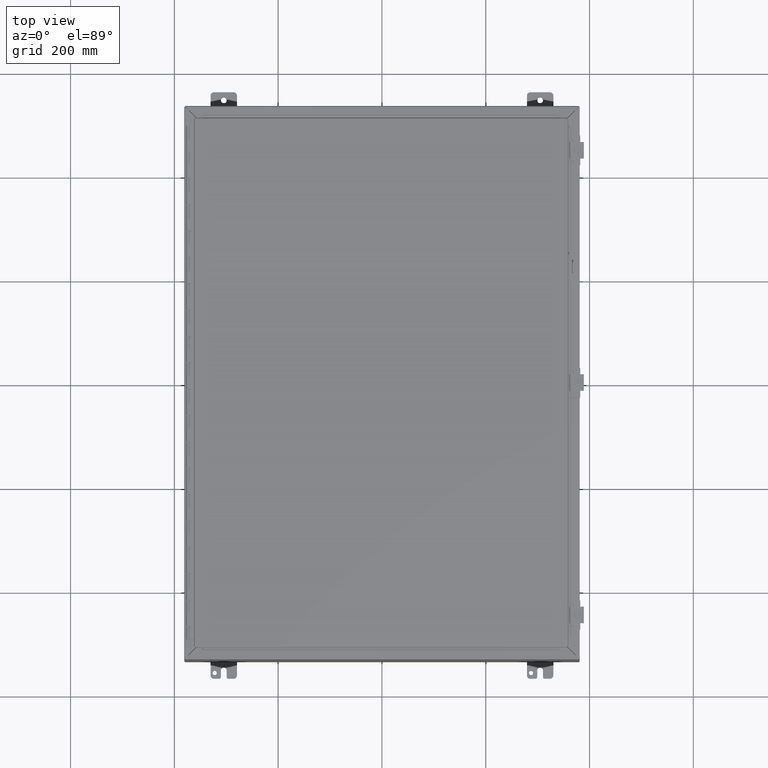
[diagram: clean part render]
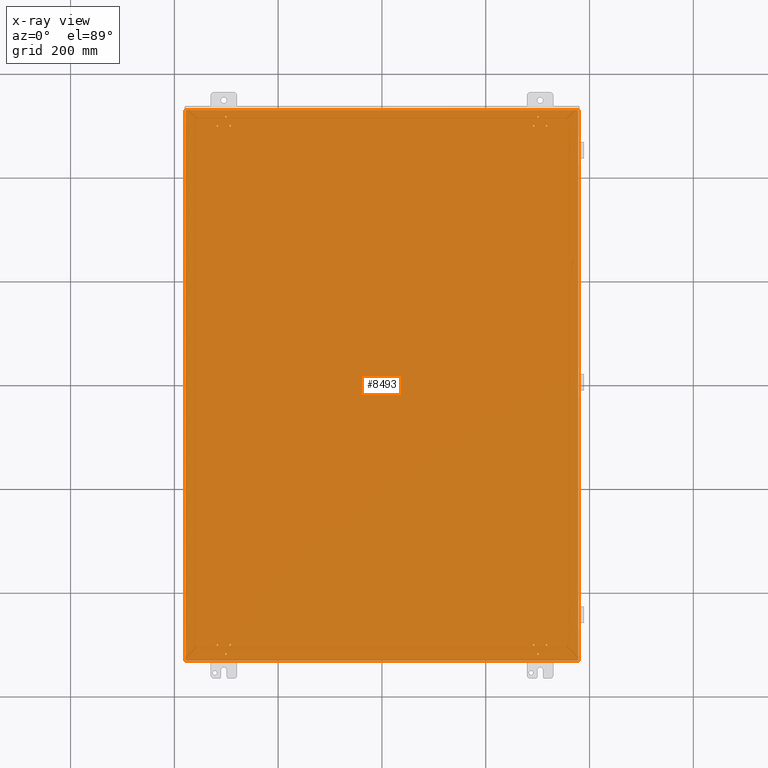
[diagram: x-ray — body ghosted, one internal face saturated and labeled with its STEP entity id]
A machine part, top view, then the same camera in x-ray: the body is ghosted and one INTERNAL B-rep face — a face not visible from any outside direction — is saturated and labeled: STEP entity #8493.
In plain terms, the highlighted planar face has unit normal (0, 0, 1).
Its self-contained STEP definition (entity closure, byte-faithful):
#1709=CARTESIAN_POINT('',(12.424375299999996,-19.689998991866471,0.074));
#1710=VERTEX_POINT('',#1709);
#1711=CARTESIAN_POINT('',(12.484375299999996,-19.689998991866471,0.074));
#1712=DIRECTION('',(0.0,0.0,-1.0));
#1713=DIRECTION('',(1.0,0.0,0.0));
#1714=AXIS2_PLACEMENT_3D('',#1711,#1712,#1713);
#1715=CIRCLE('',#1714,0.06);
#1716=EDGE_CURVE('',#1710,#1710,#1715,.T.);
#1783=CARTESIAN_POINT('',(11.455625299999998,-19.689998991866471,0.074));
#1784=VERTEX_POINT('',#1783);
#1785=CARTESIAN_POINT('',(11.515625299999998,-19.689998991866471,0.074));
#1786=DIRECTION('',(0.0,0.0,-1.0));
#1787=DIRECTION('',(1.0,0.0,0.0));
#1788=AXIS2_PLACEMENT_3D('',#1785,#1786,#1787);
#1789=CIRCLE('',#1788,0.06);
#1790=EDGE_CURVE('',#1784,#1784,#1789,.T.);
#1857=CARTESIAN_POINT('',(11.781250299997273,-20.375498991872277,0.074));
#1858=VERTEX_POINT('',#1857);
#1859=CARTESIAN_POINT('',(11.841250299997274,-20.375498991872277,0.074));
#1860=DIRECTION('',(0.0,0.0,-1.0));
#1861=DIRECTION('',(1.0,0.0,0.0));
#1862=AXIS2_PLACEMENT_3D('',#1859,#1860,#1861);
#1863=CIRCLE('',#1862,0.06);
#1864=EDGE_CURVE('',#1858,#1858,#1863,.T.);
#1931=CARTESIAN_POINT('',(-11.57562529999997,-19.689998991866478,0.074));
#1932=VERTEX_POINT('',#1931);
#1933=CARTESIAN_POINT('',(-11.51562529999997,-19.689998991866478,0.074));
#1934=DIRECTION('',(0.0,0.0,-1.0));
#1935=DIRECTION('',(1.0,0.0,0.0));
#1936=AXIS2_PLACEMENT_3D('',#1933,#1934,#1935);
#1937=CIRCLE('',#1936,0.06);
#1938=EDGE_CURVE('',#1932,#1932,#1937,.T.);
#2005=CARTESIAN_POINT('',(-11.901250299997244,-20.375498991872284,0.074));
#2006=VERTEX_POINT('',#2005);
#2007=CARTESIAN_POINT('',(-11.841250299997244,-20.375498991872284,0.074));
#2008=DIRECTION('',(0.0,0.0,-1.0));
#2009=DIRECTION('',(1.0,0.0,0.0));
#2010=AXIS2_PLACEMENT_3D('',#2007,#2008,#2009);
#2011=CIRCLE('',#2010,0.06);
#2012=EDGE_CURVE('',#2006,#2006,#2011,.T.);
#2079=CARTESIAN_POINT('',(-12.544375299999967,-19.689998991866478,0.074));
#2080=VERTEX_POINT('',#2079);
#2081=CARTESIAN_POINT('',(-12.484375299999966,-19.689998991866478,0.074));
#2082=DIRECTION('',(0.0,0.0,-1.0));
#2083=DIRECTION('',(1.0,0.0,0.0));
#2084=AXIS2_PLACEMENT_3D('',#2081,#2082,#2083);
#2085=CIRCLE('',#2084,0.06);
#2086=EDGE_CURVE('',#2080,#2080,#2085,.T.);
#2153=CARTESIAN_POINT('',(-11.901250299997248,20.375498991872284,0.074));
#2154=VERTEX_POINT('',#2153);
#2155=CARTESIAN_POINT('',(-11.841250299997247,20.375498991872284,0.074));
#2156=DIRECTION('',(0.0,0.0,-1.0));
#2157=DIRECTION('',(1.0,0.0,0.0));
#2158=AXIS2_PLACEMENT_3D('',#2155,#2156,#2157);
#2159=CIRCLE('',#2158,0.06);
#2160=EDGE_CURVE('',#2154,#2154,#2159,.T.);
#2227=CARTESIAN_POINT('',(-12.54437529999997,19.689998991866478,0.074));
#2228=VERTEX_POINT('',#2227);
#2229=CARTESIAN_POINT('',(-12.48437529999997,19.689998991866478,0.074));
#2230=DIRECTION('',(0.0,0.0,-1.0));
#2231=DIRECTION('',(1.0,0.0,0.0));
#2232=AXIS2_PLACEMENT_3D('',#2229,#2230,#2231);
#2233=CIRCLE('',#2232,0.06);
#2234=EDGE_CURVE('',#2228,#2228,#2233,.T.);
#2301=CARTESIAN_POINT('',(-11.575625299999972,19.689998991866478,0.074));
#2302=VERTEX_POINT('',#2301);
#2303=CARTESIAN_POINT('',(-11.515625299999973,19.689998991866478,0.074));
#2304=DIRECTION('',(0.0,0.0,-1.0));
#2305=DIRECTION('',(1.0,0.0,0.0));
#2306=AXIS2_PLACEMENT_3D('',#2303,#2304,#2305);
#2307=CIRCLE('',#2306,0.06);
#2308=EDGE_CURVE('',#2302,#2302,#2307,.T.);
#2375=CARTESIAN_POINT('',(11.455625299999994,19.689998991866471,0.074));
#2376=VERTEX_POINT('',#2375);
#2377=CARTESIAN_POINT('',(11.515625299999995,19.689998991866471,0.074));
#2378=DIRECTION('',(0.0,0.0,-1.0));
#2379=DIRECTION('',(1.0,0.0,0.0));
#2380=AXIS2_PLACEMENT_3D('',#2377,#2378,#2379);
#2381=CIRCLE('',#2380,0.06);
#2382=EDGE_CURVE('',#2376,#2376,#2381,.T.);
#2449=CARTESIAN_POINT('',(11.78125029999727,20.375498991872277,0.074));
#2450=VERTEX_POINT('',#2449);
#2451=CARTESIAN_POINT('',(11.84125029999727,20.375498991872277,0.074));
#2452=DIRECTION('',(0.0,0.0,-1.0));
#2453=DIRECTION('',(1.0,0.0,0.0));
#2454=AXIS2_PLACEMENT_3D('',#2451,#2452,#2453);
#2455=CIRCLE('',#2454,0.06);
#2456=EDGE_CURVE('',#2450,#2450,#2455,.T.);
#2523=CARTESIAN_POINT('',(12.424375299999994,19.689998991866471,0.074));
#2524=VERTEX_POINT('',#2523);
#2525=CARTESIAN_POINT('',(12.484375299999993,19.689998991866471,0.074));
#2526=DIRECTION('',(0.0,0.0,-1.0));
#2527=DIRECTION('',(1.0,0.0,0.0));
#2528=AXIS2_PLACEMENT_3D('',#2525,#2526,#2527);
#2529=CIRCLE('',#2528,0.06);
#2530=EDGE_CURVE('',#2524,#2524,#2529,.T.);
#7057=CARTESIAN_POINT('',(14.894750000000004,20.882766839324358,0.074));
#7058=VERTEX_POINT('',#7057);
#7068=CARTESIAN_POINT('',(14.894750000000004,-20.882766839324372,0.074));
#7069=VERTEX_POINT('',#7068);
#7070=CARTESIAN_POINT('',(14.894750000000004,-20.882766839324368,0.074));
#7071=DIRECTION('',(0.0,1.0,0.0));
#7072=VECTOR('',#7071,41.765533678648723);
#7073=LINE('',#7070,#7072);
#7074=EDGE_CURVE('',#7069,#7058,#7073,.T.);
#7386=CARTESIAN_POINT('',(-14.894749999999995,-20.882766839324358,0.074));
#7387=VERTEX_POINT('',#7386);
#7397=CARTESIAN_POINT('',(-14.894750000000005,20.882766839324379,0.074));
#7398=VERTEX_POINT('',#7397);
#7399=CARTESIAN_POINT('',(-14.894750000000007,20.882766839324375,0.074));
#7400=DIRECTION('',(0.0,-1.0,0.0));
#7401=VECTOR('',#7400,41.765533678648737);
#7402=LINE('',#7399,#7401);
#7403=EDGE_CURVE('',#7398,#7387,#7402,.T.);
#7667=CARTESIAN_POINT('',(14.882766839324374,-20.894750000000005,0.074));
#7668=VERTEX_POINT('',#7667);
#7678=CARTESIAN_POINT('',(-14.882766839324349,-20.894750000000005,0.074));
#7679=VERTEX_POINT('',#7678);
#7680=CARTESIAN_POINT('',(-14.882766839324347,-20.894750000000005,0.074));
#7681=DIRECTION('',(1.0,0.0,0.0));
#7682=VECTOR('',#7681,29.765533678648723);
#7683=LINE('',#7680,#7682);
#7684=EDGE_CURVE('',#7679,#7668,#7683,.T.);
#8044=CARTESIAN_POINT('',(-14.882766839324379,20.894750000000005,0.074));
#8045=VERTEX_POINT('',#8044);
#8055=CARTESIAN_POINT('',(14.882766839324356,20.894750000000005,0.074));
#8056=VERTEX_POINT('',#8055);
#8057=CARTESIAN_POINT('',(14.88276683932436,20.894750000000005,0.074));
#8058=DIRECTION('',(-1.0,0.0,0.0));
#8059=VECTOR('',#8058,29.765533678648737);
#8060=LINE('',#8057,#8059);
#8061=EDGE_CURVE('',#8056,#8045,#8060,.T.);
#8330=CARTESIAN_POINT('',(-14.937891921115432,20.937891921115433,0.074));
#8331=DIRECTION('',(0.0,0.0,-1.0));
#8332=DIRECTION('',(1.0,0.0,0.0));
#8333=AXIS2_PLACEMENT_3D('',#8330,#8331,#8332);
#8334=CIRCLE('',#8333,0.07);
#8335=EDGE_CURVE('',#8045,#7398,#8334,.T.);
#8417=CARTESIAN_POINT('',(14.937891921115417,20.937891921115423,0.074));
#8418=DIRECTION('',(0.0,0.0,-1.0));
#8419=DIRECTION('',(1.0,0.0,0.0));
#8420=AXIS2_PLACEMENT_3D('',#8417,#8418,#8419);
#8421=CIRCLE('',#8420,0.07);
#8422=EDGE_CURVE('',#7058,#8056,#8421,.T.);
#8430=CARTESIAN_POINT('',(0.0,2.098059E-015,0.074));
#8431=DIRECTION('',(0.0,0.0,1.0));
#8432=DIRECTION('',(1.0,0.0,0.0));
#8433=AXIS2_PLACEMENT_3D('',#8430,#8431,#8432);
#8434=PLANE('',#8433);
#8435=ORIENTED_EDGE('',*,*,#8061,.T.);
#8436=ORIENTED_EDGE('',*,*,#8335,.T.);
#8437=ORIENTED_EDGE('',*,*,#7403,.T.);
#8438=CARTESIAN_POINT('',(-14.937891921115408,-20.937891921115423,0.074));
#8439=DIRECTION('',(0.0,0.0,-1.0));
#8440=DIRECTION('',(1.0,0.0,0.0));
#8441=AXIS2_PLACEMENT_3D('',#8438,#8439,#8440);
#8442=CIRCLE('',#8441,0.07);
#8443=EDGE_CURVE('',#7387,#7679,#8442,.T.);
#8444=ORIENTED_EDGE('',*,*,#8443,.T.);
#8445=ORIENTED_EDGE('',*,*,#7684,.T.);
#8446=CARTESIAN_POINT('',(14.937891921115432,-20.937891921115423,0.074));
#8447=DIRECTION('',(0.0,0.0,-1.0));
#8448=DIRECTION('',(1.0,0.0,0.0));
#8449=AXIS2_PLACEMENT_3D('',#8446,#8447,#8448);
#8450=CIRCLE('',#8449,0.07);
#8451=EDGE_CURVE('',#7668,#7069,#8450,.T.);
#8452=ORIENTED_EDGE('',*,*,#8451,.T.);
#8453=ORIENTED_EDGE('',*,*,#7074,.T.);
#8454=ORIENTED_EDGE('',*,*,#8422,.T.);
#8455=EDGE_LOOP('',(#8435,#8436,#8437,#8444,#8445,#8452,#8453,#8454));
#8456=FACE_OUTER_BOUND('',#8455,.T.);
#8457=ORIENTED_EDGE('',*,*,#1716,.T.);
#8458=EDGE_LOOP('',(#8457));
#8459=FACE_BOUND('',#8458,.T.);
#8460=ORIENTED_EDGE('',*,*,#1790,.T.);
#8461=EDGE_LOOP('',(#8460));
#8462=FACE_BOUND('',#8461,.T.);
#8463=ORIENTED_EDGE('',*,*,#1864,.T.);
#8464=EDGE_LOOP('',(#8463));
#8465=FACE_BOUND('',#8464,.T.);
#8466=ORIENTED_EDGE('',*,*,#1938,.T.);
#8467=EDGE_LOOP('',(#8466));
#8468=FACE_BOUND('',#8467,.T.);
#8469=ORIENTED_EDGE('',*,*,#2012,.T.);
#8470=EDGE_LOOP('',(#8469));
#8471=FACE_BOUND('',#8470,.T.);
#8472=ORIENTED_EDGE('',*,*,#2086,.T.);
#8473=EDGE_LOOP('',(#8472));
#8474=FACE_BOUND('',#8473,.T.);
#8475=ORIENTED_EDGE('',*,*,#2160,.T.);
#8476=EDGE_LOOP('',(#8475));
#8477=FACE_BOUND('',#8476,.T.);
#8478=ORIENTED_EDGE('',*,*,#2234,.T.);
#8479=EDGE_LOOP('',(#8478));
#8480=FACE_BOUND('',#8479,.T.);
#8481=ORIENTED_EDGE('',*,*,#2308,.T.);
#8482=EDGE_LOOP('',(#8481));
#8483=FACE_BOUND('',#8482,.T.);
#8484=ORIENTED_EDGE('',*,*,#2382,.T.);
#8485=EDGE_LOOP('',(#8484));
#8486=FACE_BOUND('',#8485,.T.);
#8487=ORIENTED_EDGE('',*,*,#2456,.T.);
#8488=EDGE_LOOP('',(#8487));
#8489=FACE_BOUND('',#8488,.T.);
#8490=ORIENTED_EDGE('',*,*,#2530,.T.);
#8491=EDGE_LOOP('',(#8490));
#8492=FACE_BOUND('',#8491,.T.);
#8493=ADVANCED_FACE('',(#8456,#8459,#8462,#8465,#8468,#8471,#8474,#8477,#8480,#8483,#8486,#8489,#8492),#8434,.T.);